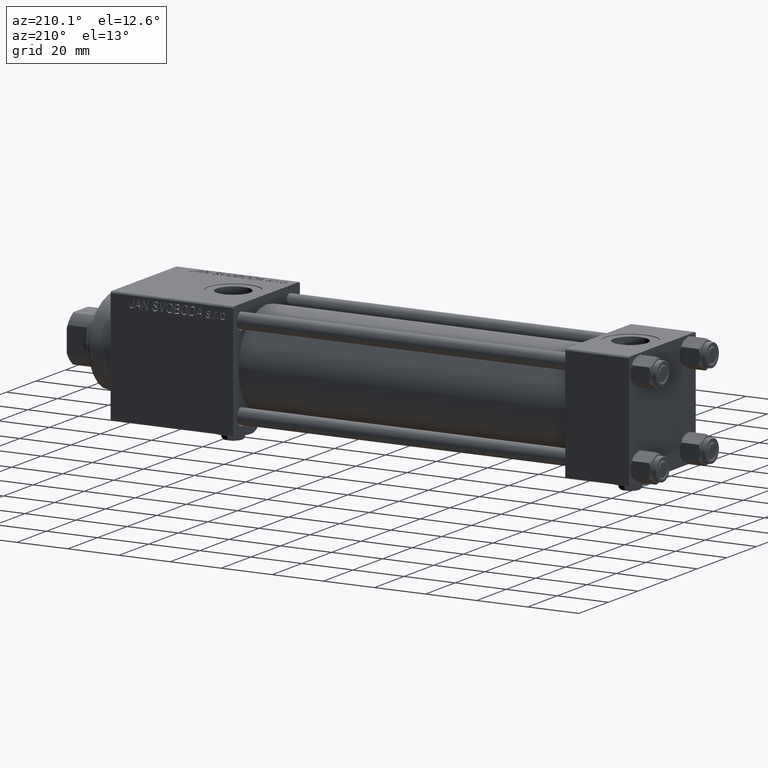
[diagram: clean part render]
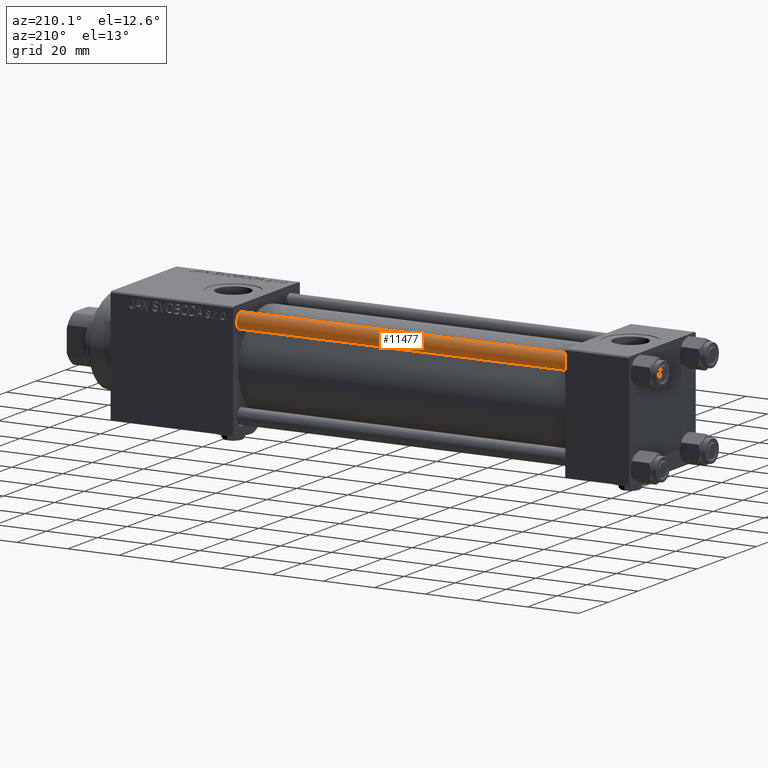
[diagram: same view with one face highlighted and labeled with its STEP entity id]
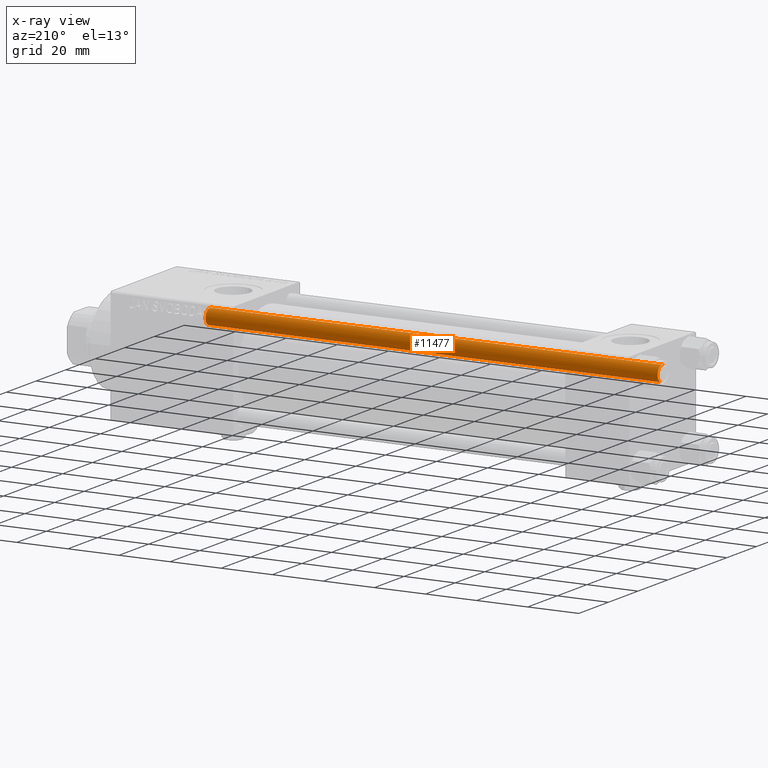
[diagram: x-ray of the same camera — body ghosted, the highlighted face saturated]
A machine part, auxiliary view. The second image highlights one B-rep face of the part: STEP entity #11477.
The next image is the same camera in x-ray: the body ghosted, the highlighted face saturated — about 0% of this face is hidden behind the body in this view.
In plain terms, the highlighted cylindrical surface (edge-blend (fillet) strip) has radius 3 mm, axis along (-1, 0, 0).
Its self-contained STEP definition (entity closure, byte-faithful):
#608 = CARTESIAN_POINT ( 'NONE',  ( 3.000000000000000444, 3.673940397442060361E-16, 177.5000000000000000 ) ) ;
#876 = DIRECTION ( 'NONE',  ( -0.000000000000000000, -0.000000000000000000, -1.000000000000000000 ) ) ;
#1246 = EDGE_LOOP ( 'NONE', ( #33724, #19455, #43204, #18865 ) ) ;
#1566 = CARTESIAN_POINT ( 'NONE',  ( -3.000000000000000444, 0.000000000000000000, 177.5000000000000000 ) ) ;
#2597 = FACE_OUTER_BOUND ( 'NONE', #1246, .T. ) ;
#2744 = DIRECTION ( 'NONE',  ( -0.000000000000000000, -0.000000000000000000, 1.000000000000000000 ) ) ;
#3023 = CIRCLE ( 'NONE', #27240, 3.000000000000000444 ) ;
#3629 = VERTEX_POINT ( 'NONE', #21258 ) ;
#5560 = VERTEX_POINT ( 'NONE', #608 ) ;
#5902 = VERTEX_POINT ( 'NONE', #17024 ) ;
#8326 = DIRECTION ( 'NONE',  ( 1.000000000000000000, 0.000000000000000000, 0.000000000000000000 ) ) ;
#10980 = DIRECTION ( 'NONE',  ( -1.000000000000000000, 0.000000000000000000, 0.000000000000000000 ) ) ;
#11477 = ADVANCED_FACE ( 'NONE', ( #2597 ), #19104, .T. ) ;
#13671 = EDGE_CURVE ( 'NONE', #5902, #3629, #39001, .T. ) ;
#17017 = EDGE_CURVE ( 'NONE', #5560, #5902, #50324, .T. ) ;
#17024 = CARTESIAN_POINT ( 'NONE',  ( 3.000000000000000444, 3.673940397442060361E-16, 0.5000000000000281997 ) ) ;
#18865 = ORIENTED_EDGE ( 'NONE', *, *, #44935, .F. ) ;
#19104 = CYLINDRICAL_SURFACE ( 'NONE', #19881, 3.000000000000000444 ) ;
#19455 = ORIENTED_EDGE ( 'NONE', *, *, #17017, .T. ) ;
#19881 = AXIS2_PLACEMENT_3D ( 'NONE', #31539, #48082, #10980 ) ;
#21258 = CARTESIAN_POINT ( 'NONE',  ( -3.000000000000000444, 0.000000000000000000, 0.5000000000000281997 ) ) ;
#22689 = VECTOR ( 'NONE', #24884, 1000.000000000000000 ) ;
#24884 = DIRECTION ( 'NONE',  ( -0.000000000000000000, -0.000000000000000000, -1.000000000000000000 ) ) ;
#27240 = AXIS2_PLACEMENT_3D ( 'NONE', #49465, #52715, #8326 ) ;
#29730 = CARTESIAN_POINT ( 'NONE',  ( 3.000000000000000444, 3.673940397442060361E-16, 178.0000000000000000 ) ) ;
#30891 = DIRECTION ( 'NONE',  ( 1.000000000000000000, 0.000000000000000000, 0.000000000000000000 ) ) ;
#31099 = VERTEX_POINT ( 'NONE', #1566 ) ;
#31539 = CARTESIAN_POINT ( 'NONE',  ( 0.000000000000000000, 0.000000000000000000, 178.0000000000000000 ) ) ;
#33614 = LINE ( 'NONE', #50410, #36614 ) ;
#33724 = ORIENTED_EDGE ( 'NONE', *, *, #51856, .T. ) ;
#36614 = VECTOR ( 'NONE', #876, 1000.000000000000000 ) ;
#39001 = CIRCLE ( 'NONE', #52835, 3.000000000000000444 ) ;
#39818 = CARTESIAN_POINT ( 'NONE',  ( 0.000000000000000000, 0.000000000000000000, 0.5000000000000281997 ) ) ;
#43204 = ORIENTED_EDGE ( 'NONE', *, *, #13671, .T. ) ;
#44935 = EDGE_CURVE ( 'NONE', #31099, #3629, #33614, .T. ) ;
#48082 = DIRECTION ( 'NONE',  ( -0.000000000000000000, -0.000000000000000000, -1.000000000000000000 ) ) ;
#49465 = CARTESIAN_POINT ( 'NONE',  ( 0.000000000000000000, 0.000000000000000000, 177.5000000000000000 ) ) ;
#50324 = LINE ( 'NONE', #29730, #22689 ) ;
#50410 = CARTESIAN_POINT ( 'NONE',  ( -3.000000000000000444, 0.000000000000000000, 178.0000000000000000 ) ) ;
#51856 = EDGE_CURVE ( 'NONE', #31099, #5560, #3023, .T. ) ;
#52715 = DIRECTION ( 'NONE',  ( 0.000000000000000000, 0.000000000000000000, -1.000000000000000000 ) ) ;
#52835 = AXIS2_PLACEMENT_3D ( 'NONE', #39818, #2744, #30891 ) ;